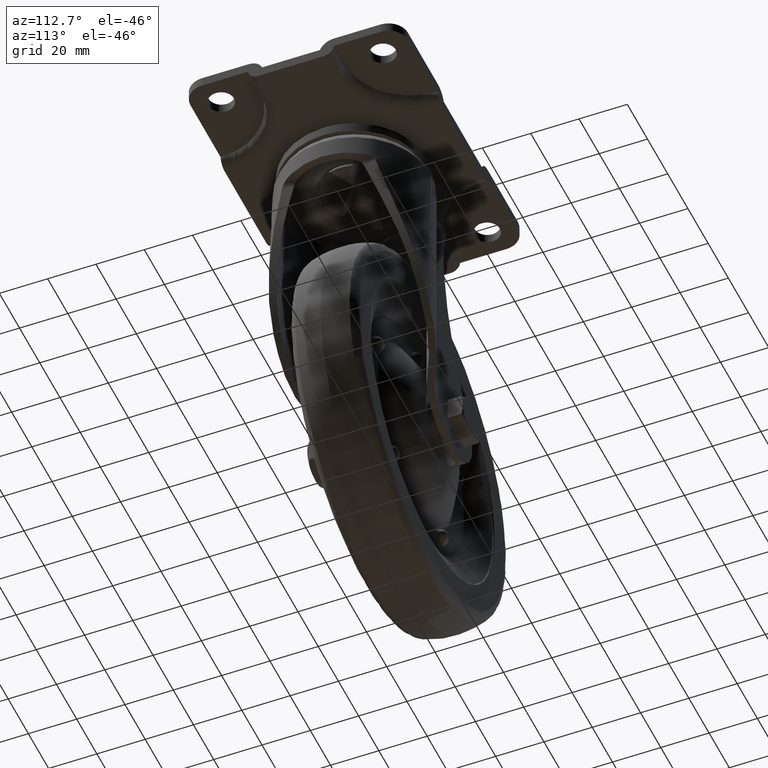
[diagram: clean part render]
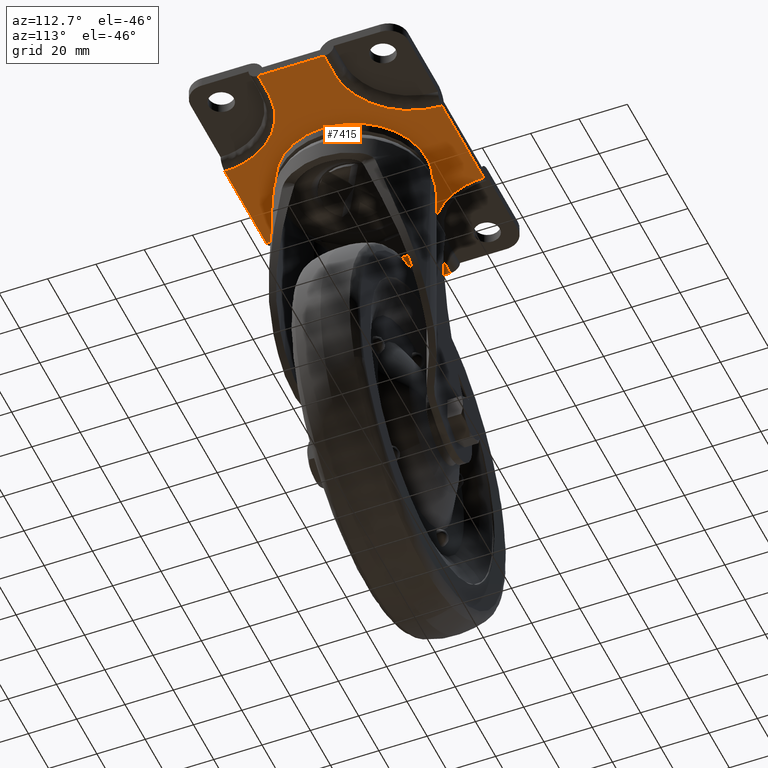
[diagram: same view with one face highlighted and labeled with its STEP entity id]
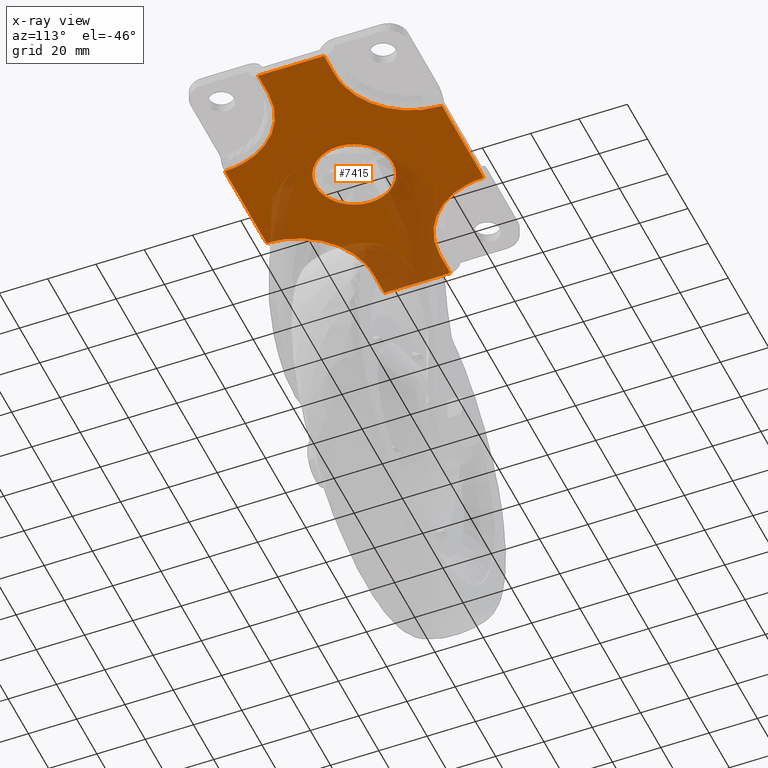
[diagram: x-ray of the same camera — body ghosted, the highlighted face saturated]
A machine part, auxiliary view. The second image highlights one B-rep face of the part: STEP entity #7415.
The next image is the same camera in x-ray: the body ghosted, the highlighted face saturated — about 24% of this face is hidden behind the body in this view.
In plain terms, the highlighted face is a freeform B-spline surface patch.
Its self-contained STEP definition (entity closure, byte-faithful):
#6676=CARTESIAN_POINT('',(62.499677999999903,13.660000000000000,-8.0));
#6677=VERTEX_POINT('',#6676);
#6691=CARTESIAN_POINT('',(51.999677999999797,13.660000000000000,-8.0));
#6692=VERTEX_POINT('',#6691);
#6693=CARTESIAN_POINT('',(51.999677999999797,13.660000000000000,-8.0));
#6694=CARTESIAN_POINT('',(62.499677999999903,13.660000000000000,-8.0));
#6695=QUASI_UNIFORM_CURVE('',1,(#6693,#6694),.UNSPECIFIED.,.F.,.U.);
#6696=EDGE_CURVE('',#6692,#6677,#6695,.T.);
#6732=CARTESIAN_POINT('',(20.659677999999801,45.0,-8.0));
#6733=VERTEX_POINT('',#6732);
#6749=CARTESIAN_POINT('',(20.659677999999801,45.0,-8.0));
#6750=CARTESIAN_POINT('',(20.659677999999804,13.659999999999998,-8.0));
#6751=CARTESIAN_POINT('',(51.999677999999797,13.660000000000000,-8.0));
#6759=(BOUNDED_CURVE()B_SPLINE_CURVE(2,(#6749,#6750,#6751),.UNSPECIFIED.,.F.,.U.)CURVE()GEOMETRIC_REPRESENTATION_ITEM()QUASI_UNIFORM_CURVE()RATIONAL_B_SPLINE_CURVE((1.0,0.707106781186547,1.0))REPRESENTATION_ITEM(''));
#6760=EDGE_CURVE('',#6733,#6692,#6759,.T.);
#6779=CARTESIAN_POINT('',(-62.500321999999997,13.660000000000000,-8.0));
#6780=VERTEX_POINT('',#6779);
#6795=CARTESIAN_POINT('',(-52.000321999999997,13.660000000000000,-8.0));
#6796=VERTEX_POINT('',#6795);
#6810=CARTESIAN_POINT('',(-62.500321999999997,13.660000000000000,-8.0));
#6811=CARTESIAN_POINT('',(-52.000321999999997,13.660000000000000,-8.0));
#6812=QUASI_UNIFORM_CURVE('',1,(#6810,#6811),.UNSPECIFIED.,.F.,.U.);
#6813=EDGE_CURVE('',#6780,#6796,#6812,.T.);
#6835=CARTESIAN_POINT('',(-20.660322000000001,45.0,-8.0));
#6836=VERTEX_POINT('',#6835);
#6850=CARTESIAN_POINT('',(-52.000321999999997,13.660000000000000,-8.0));
#6851=CARTESIAN_POINT('',(-20.660321999999997,13.659999999999998,-8.0));
#6852=CARTESIAN_POINT('',(-20.660322000000001,45.0,-8.0));
#6860=(BOUNDED_CURVE()B_SPLINE_CURVE(2,(#6850,#6851,#6852),.UNSPECIFIED.,.F.,.U.)CURVE()GEOMETRIC_REPRESENTATION_ITEM()QUASI_UNIFORM_CURVE()RATIONAL_B_SPLINE_CURVE((1.0,0.707106781186547,1.0))REPRESENTATION_ITEM(''));
#6861=EDGE_CURVE('',#6796,#6836,#6860,.T.);
#6882=CARTESIAN_POINT('',(-62.500321999999997,-13.660000000000000,-8.0));
#6883=VERTEX_POINT('',#6882);
#6897=CARTESIAN_POINT('',(-52.000321999999997,-13.660000000000000,-8.0));
#6898=VERTEX_POINT('',#6897);
#6899=CARTESIAN_POINT('',(-52.000321999999997,-13.660000000000000,-8.0));
#6900=CARTESIAN_POINT('',(-62.500321999999997,-13.660000000000000,-8.0));
#6901=QUASI_UNIFORM_CURVE('',1,(#6899,#6900),.UNSPECIFIED.,.F.,.U.);
#6902=EDGE_CURVE('',#6898,#6883,#6901,.T.);
#6938=CARTESIAN_POINT('',(-20.660322000000001,-45.0,-8.0));
#6939=VERTEX_POINT('',#6938);
#6955=CARTESIAN_POINT('',(-20.660322000000001,-45.0,-8.0));
#6956=CARTESIAN_POINT('',(-20.660321999999997,-13.659999999999998,-8.0));
#6957=CARTESIAN_POINT('',(-52.000321999999997,-13.660000000000000,-8.0));
#6965=(BOUNDED_CURVE()B_SPLINE_CURVE(2,(#6955,#6956,#6957),.UNSPECIFIED.,.F.,.U.)CURVE()GEOMETRIC_REPRESENTATION_ITEM()QUASI_UNIFORM_CURVE()RATIONAL_B_SPLINE_CURVE((1.0,0.707106781186547,1.0))REPRESENTATION_ITEM(''));
#6966=EDGE_CURVE('',#6939,#6898,#6965,.T.);
#6985=CARTESIAN_POINT('',(62.499677999999903,-13.660000000000000,-8.0));
#6986=VERTEX_POINT('',#6985);
#7001=CARTESIAN_POINT('',(51.999677999999797,-13.660000000000000,-8.0));
#7002=VERTEX_POINT('',#7001);
#7016=CARTESIAN_POINT('',(62.499677999999903,-13.660000000000000,-8.0));
#7017=CARTESIAN_POINT('',(51.999677999999797,-13.660000000000000,-8.0));
#7018=QUASI_UNIFORM_CURVE('',1,(#7016,#7017),.UNSPECIFIED.,.F.,.U.);
#7019=EDGE_CURVE('',#6986,#7002,#7018,.T.);
#7041=CARTESIAN_POINT('',(20.659677999999850,-45.0,-8.0));
#7042=VERTEX_POINT('',#7041);
#7056=CARTESIAN_POINT('',(51.999677999999797,-13.660000000000000,-8.0));
#7057=CARTESIAN_POINT('',(20.659677999999804,-13.659999999999998,-8.0));
#7058=CARTESIAN_POINT('',(20.659677999999801,-45.0,-8.0));
#7066=(BOUNDED_CURVE()B_SPLINE_CURVE(2,(#7056,#7057,#7058),.UNSPECIFIED.,.F.,.U.)CURVE()GEOMETRIC_REPRESENTATION_ITEM()QUASI_UNIFORM_CURVE()RATIONAL_B_SPLINE_CURVE((1.0,0.707106781186547,1.0))REPRESENTATION_ITEM(''));
#7067=EDGE_CURVE('',#7002,#7042,#7066,.T.);
#7237=CARTESIAN_POINT('',(-62.500321999999997,13.660000000000000,-8.0));
#7238=CARTESIAN_POINT('',(-62.500321999999997,-13.660000000000000,-8.0));
#7239=QUASI_UNIFORM_CURVE('',1,(#7237,#7238),.UNSPECIFIED.,.F.,.U.);
#7240=EDGE_CURVE('',#6780,#6883,#7239,.T.);
#7261=CARTESIAN_POINT('',(20.659677999999801,45.0,-8.0));
#7262=CARTESIAN_POINT('',(-20.660322000000001,45.0,-8.0));
#7263=QUASI_UNIFORM_CURVE('',1,(#7261,#7262),.UNSPECIFIED.,.F.,.U.);
#7264=EDGE_CURVE('',#6733,#6836,#7263,.T.);
#7283=CARTESIAN_POINT('',(62.499677999999903,-13.660000000000000,-8.0));
#7284=CARTESIAN_POINT('',(62.499677999999903,13.660000000000000,-8.0));
#7285=QUASI_UNIFORM_CURVE('',1,(#7283,#7284),.UNSPECIFIED.,.F.,.U.);
#7286=EDGE_CURVE('',#6986,#6677,#7285,.T.);
#7309=CARTESIAN_POINT('',(-20.660322000000001,-45.0,-8.0));
#7310=CARTESIAN_POINT('',(20.659677999999850,-45.0,-8.0));
#7311=QUASI_UNIFORM_CURVE('',1,(#7309,#7310),.UNSPECIFIED.,.F.,.U.);
#7312=EDGE_CURVE('',#6939,#7042,#7311,.T.);
#7320=CARTESIAN_POINT('',(-68.744071757725735,49.495499825562533,-8.0));
#7321=CARTESIAN_POINT('',(68.743431110486895,49.495499825562533,-8.0));
#7322=CARTESIAN_POINT('',(-68.744071757725735,-49.495502239550653,-8.0));
#7323=CARTESIAN_POINT('',(68.743431110486895,-49.495502239550653,-8.0));
#7324=B_SPLINE_SURFACE_WITH_KNOTS('',1,1,((#7320,#7322),(#7321,#7323)),.UNSPECIFIED.,.F.,.F.,.U.,(2,2),(2,2),(0.0,137.487502868212600),(0.0,98.991002065113179),.UNSPECIFIED.);
#7325=ORIENTED_EDGE('',*,*,#7286,.F.);
#7326=ORIENTED_EDGE('',*,*,#7019,.T.);
#7327=ORIENTED_EDGE('',*,*,#7067,.T.);
#7328=ORIENTED_EDGE('',*,*,#7312,.F.);
#7329=ORIENTED_EDGE('',*,*,#6966,.T.);
#7330=ORIENTED_EDGE('',*,*,#6902,.T.);
#7331=ORIENTED_EDGE('',*,*,#7240,.F.);
#7332=ORIENTED_EDGE('',*,*,#6813,.T.);
#7333=ORIENTED_EDGE('',*,*,#6861,.T.);
#7334=ORIENTED_EDGE('',*,*,#7264,.F.);
#7335=ORIENTED_EDGE('',*,*,#6760,.T.);
#7336=ORIENTED_EDGE('',*,*,#6696,.T.);
#7337=EDGE_LOOP('',(#7325,#7326,#7327,#7328,#7329,#7330,#7331,#7332,#7333,#7334,#7335,#7336));
#7338=FACE_OUTER_BOUND('',#7337,.T.);
#7339=CARTESIAN_POINT('',(15.999677999999900,0.0,-8.0));
#7340=VERTEX_POINT('',#7339);
#7341=CARTESIAN_POINT('',(-13.923262352950500,7.883637628747737,-7.999999440698060));
#7342=VERTEX_POINT('',#7341);
#7343=CARTESIAN_POINT('',(15.999677999999900,0.0,-8.0));
#7344=CARTESIAN_POINT('',(15.999737619572230,1.039552262561546,-7.999999995214033));
#7345=CARTESIAN_POINT('',(15.769814711085530,3.392386301169110,-7.999999980360848));
#7346=CARTESIAN_POINT('',(14.838962589126799,6.220158300317335,-7.999999951069726));
#7347=CARTESIAN_POINT('',(13.504627573521940,8.676168430868922,-7.999999916438266));
#7348=CARTESIAN_POINT('',(11.939298394092591,10.796169917363891,-7.999999879316838));
#7349=CARTESIAN_POINT('',(9.916442639042877,12.661641464332851,-7.999999835370685));
#7350=CARTESIAN_POINT('',(7.700913730729945,14.083023432727151,-7.999999790101994));
#7351=CARTESIAN_POINT('',(5.210138177984075,15.231784662749460,-7.999999741277731));
#7352=CARTESIAN_POINT('',(2.107778683613396,15.998292366380539,-7.999999683524687));
#7353=CARTESIAN_POINT('',(-1.248813443293372,16.053549943964121,-7.999999624602696));
#7354=CARTESIAN_POINT('',(-4.167608987200196,15.527134369365371,-7.999999576012059));
#7355=CARTESIAN_POINT('',(-6.541899691780672,14.666600553281540,-7.999999538475975));
#7356=CARTESIAN_POINT('',(-9.001125246838738,13.334652677939790,-7.999999501626901));
#7357=CARTESIAN_POINT('',(-11.621476287100760,11.233081169162860,-7.999999465505256));
#7358=CARTESIAN_POINT('',(-13.222681418206770,9.121845915514541,-7.999999447241150));
#7359=CARTESIAN_POINT('',(-13.923262352950500,7.883637628747737,-7.999999440698060));
#7360=B_SPLINE_CURVE_WITH_KNOTS('',3,(#7343,#7344,#7345,#7346,#7347,#7348,#7349,#7350,#7351,#7352,#7353,#7354,#7355,#7356,#7357,#7358,#7359),.UNSPECIFIED.,.F.,.U.,(4,1,1,1,1,1,1,1,1,1,1,1,1,1,4),(0.000000026815115,3.118707361019254,7.058358640343400,8.864044615752185,11.490449291140340,14.937619182695240,17.071588545356160,19.369702948920999,23.145169714451718,26.592115530876288,29.382648795077749,32.009034651930840,34.142995718483753,37.754266932846477,42.022127861627531),.UNSPECIFIED.);
#7361=EDGE_CURVE('',#7340,#7342,#7360,.T.);
#7362=ORIENTED_EDGE('',*,*,#7361,.T.);
#7363=CARTESIAN_POINT('',(-16.000322000000089,0.0,-7.999999999999996));
#7364=VERTEX_POINT('',#7363);
#7365=CARTESIAN_POINT('',(-13.923262352950493,7.883637628747737,-7.999999440698062));
#7366=CARTESIAN_POINT('',(-16.000322140496991,4.215434766483403,-7.999999720349028));
#7367=CARTESIAN_POINT('',(-16.000322000000089,0.0,-7.999999999999996));
#7375=(BOUNDED_CURVE()B_SPLINE_CURVE(2,(#7365,#7366,#7367),.UNSPECIFIED.,.F.,.U.)B_SPLINE_CURVE_WITH_KNOTS((3,3),(0.916016361461735,1.0),.UNSPECIFIED.)CURVE()GEOMETRIC_REPRESENTATION_ITEM()RATIONAL_B_SPLINE_CURVE((0.869321279759672,0.901607047123449,1.0))REPRESENTATION_ITEM(''));
#7376=EDGE_CURVE('',#7342,#7364,#7375,.T.);
#7377=ORIENTED_EDGE('',*,*,#7376,.T.);
#7378=CARTESIAN_POINT('',(13.922618352950311,-7.883637628747734,-7.999999440698061));
#7379=VERTEX_POINT('',#7378);
#7380=CARTESIAN_POINT('',(-16.000322000000089,0.0,-7.999999999999996));
#7381=CARTESIAN_POINT('',(-16.000485297584181,-1.149029672487461,-7.999999994711705));
#7382=CARTESIAN_POINT('',(-15.739974347354750,-3.556521522127967,-7.999999979072213));
#7383=CARTESIAN_POINT('',(-14.676144526011591,-6.628211106589617,-7.999999946333634));
#7384=CARTESIAN_POINT('',(-13.043764798865469,-9.424560277423137,-7.999999904925729));
#7385=CARTESIAN_POINT('',(-11.351851893583030,-11.381020228828760,-7.999999866344909));
#7386=CARTESIAN_POINT('',(-9.160484767709313,-13.203003984151520,-7.999999819653703));
#7387=CARTESIAN_POINT('',(-6.936020420705180,-14.520211769913900,-7.999999774708501));
#7388=CARTESIAN_POINT('',(-4.460429747423034,-15.423498147154829,-7.999999727280133));
#7389=CARTESIAN_POINT('',(-1.723957911110843,-15.996465002019860,-7.999999676813240));
#7390=CARTESIAN_POINT('',(1.140022345063756,-16.073169412724269,-7.999999626402773));
#7391=CARTESIAN_POINT('',(4.166953948224927,-15.527092052389071,-7.999999576012158));
#7392=CARTESIAN_POINT('',(6.954270362571105,-14.517109765335571,-7.999999531945765));
#7393=CARTESIAN_POINT('',(9.554351323607712,-12.967418014579200,-7.999999493637227));
#7394=CARTESIAN_POINT('',(12.035171222043269,-10.713283897530269,-7.999999460657015));
#7395=CARTESIAN_POINT('',(13.329692192149700,-8.931245965758526,-7.999999446237229));
#7396=CARTESIAN_POINT('',(13.922618352950311,-7.883637628747734,-7.999999440698061));
#7397=B_SPLINE_CURVE_WITH_KNOTS('',3,(#7380,#7381,#7382,#7383,#7384,#7385,#7386,#7387,#7388,#7389,#7390,#7391,#7392,#7393,#7394,#7395,#7396),.UNSPECIFIED.,.F.,.U.,(4,1,1,1,1,1,1,1,1,1,1,1,1,1,4),(0.000000026816416,3.447091863181512,7.222562089963162,9.684770805009272,13.131947680509549,14.937619182696860,18.220645590533309,20.846975204870841,22.816773217936991,26.592115530877059,29.382648795078389,32.009034651931408,35.456179819371513,38.410865151719591,42.022127861627553),.UNSPECIFIED.);
#7398=EDGE_CURVE('',#7364,#7379,#7397,.T.);
#7399=ORIENTED_EDGE('',*,*,#7398,.T.);
#7400=CARTESIAN_POINT('',(13.922618352950305,-7.883637628747733,-7.999999440698062));
#7401=CARTESIAN_POINT('',(15.999678140496810,-4.215434766483401,-7.999999720349030));
#7402=CARTESIAN_POINT('',(15.999677999999900,0.0,-8.0));
#7410=(BOUNDED_CURVE()B_SPLINE_CURVE(2,(#7400,#7401,#7402),.UNSPECIFIED.,.F.,.U.)B_SPLINE_CURVE_WITH_KNOTS((3,3),(0.416016361461735,0.500000000000000),.UNSPECIFIED.)CURVE()GEOMETRIC_REPRESENTATION_ITEM()RATIONAL_B_SPLINE_CURVE((0.869321279759672,0.901607047123449,1.0))REPRESENTATION_ITEM(''));
#7411=EDGE_CURVE('',#7379,#7340,#7410,.T.);
#7412=ORIENTED_EDGE('',*,*,#7411,.T.);
#7413=EDGE_LOOP('',(#7362,#7377,#7399,#7412));
#7414=FACE_BOUND('',#7413,.T.);
#7415=ADVANCED_FACE('',(#7338,#7414),#7324,.T.);